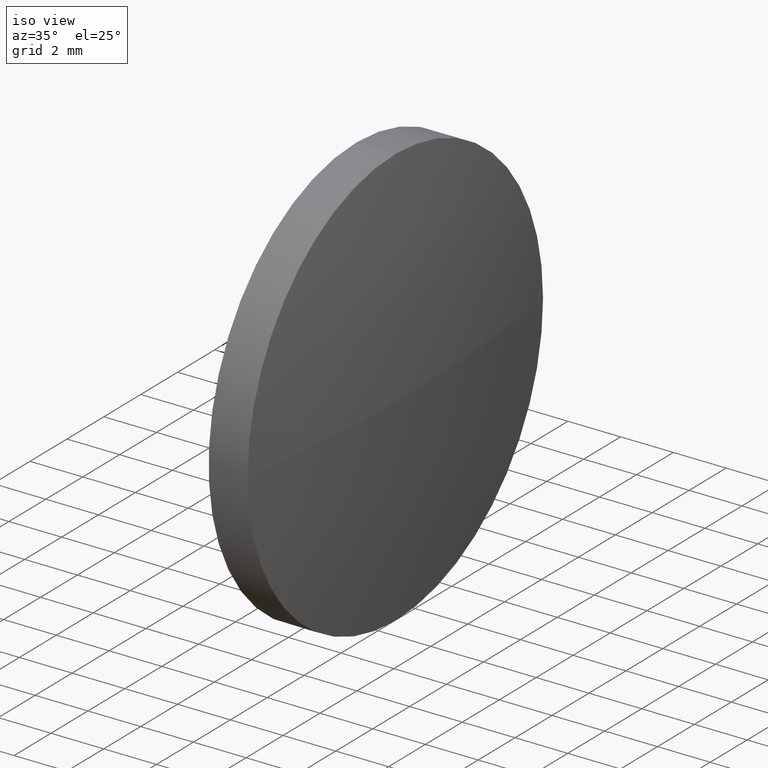
[diagram: clean part render]
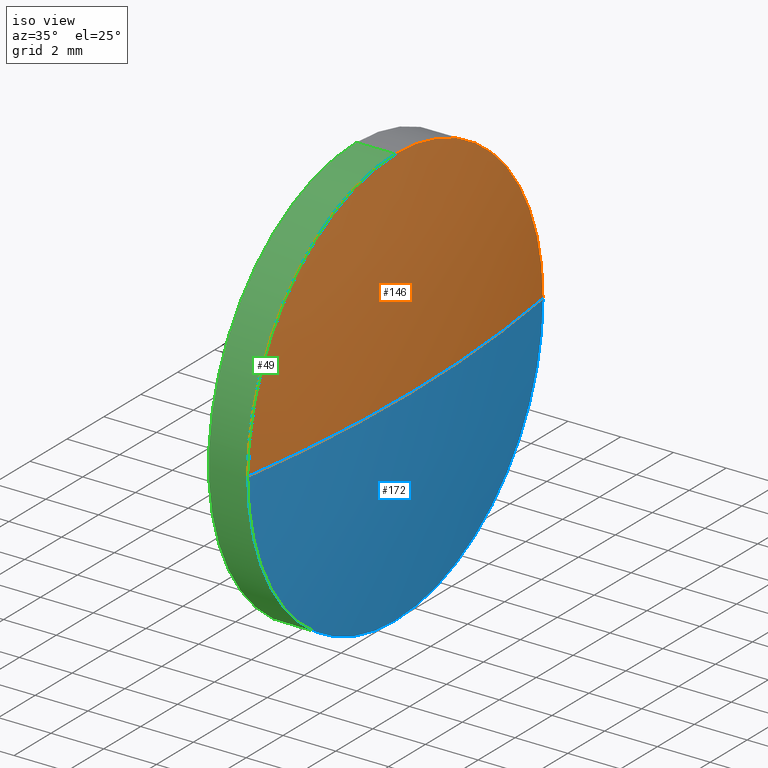
[diagram: same view with three faces highlighted in distinct colors, each labeled with its STEP entity id]
A machine part, iso view with three faces highlighted in distinct colors.
Their STEP definitions:

[orange] entity #146 — the highlighted spherical surface has radius 51.9229 mm.
#2 = VERTEX_POINT ( 'NONE', #34 ) ;
#5 = FACE_OUTER_BOUND ( 'NONE', #177, .T. ) ;
#6 = ORIENTED_EDGE ( 'NONE', *, *, #84, .F. ) ;
#17 = AXIS2_PLACEMENT_3D ( 'NONE', #73, #40, #101 ) ;
#22 = DIRECTION ( 'NONE',  ( -1.000000000000000000, -0.0000000000000000000, -0.0000000000000000000 ) ) ;
#32 = EDGE_CURVE ( 'NONE', #2, #154, #134, .T. ) ;
#34 = CARTESIAN_POINT ( 'NONE',  ( 432.4406144049648900, 100.3116985881700900, 8.000000000000007100 ) ) ;
#37 = AXIS2_PLACEMENT_3D ( 'NONE', #137, #75, #58 ) ;
#40 = DIRECTION ( 'NONE',  ( 0.0000000000000000000, 0.0000000000000000000, -1.000000000000000000 ) ) ;
#44 = AXIS2_PLACEMENT_3D ( 'NONE', #98, #156, #171 ) ;
#45 = DIRECTION ( 'NONE',  ( 0.0000000000000000000, -1.000000000000000000, -1.224646799147353200E-016 ) ) ;
#46 = ORIENTED_EDGE ( 'NONE', *, *, #95, .F. ) ;
#53 = SPHERICAL_SURFACE ( 'NONE', #37, 51.92290322580650000 ) ;
#57 = AXIS2_PLACEMENT_3D ( 'NONE', #61, #158, #45 ) ;
#58 = DIRECTION ( 'NONE',  ( 0.0000000000000000000, -1.000000000000000000, 0.0000000000000000000 ) ) ;
#61 = CARTESIAN_POINT ( 'NONE',  ( 381.1377111791583700, 100.3116985881701200, 0.0000000000000000000 ) ) ;
#73 = CARTESIAN_POINT ( 'NONE',  ( 381.1377111791583700, 100.3116985881701200, 0.0000000000000000000 ) ) ;
#75 = DIRECTION ( 'NONE',  ( 0.0000000000000000000, 0.0000000000000000000, 1.000000000000000000 ) ) ;
#84 = EDGE_CURVE ( 'NONE', #102, #117, #93, .T. ) ;
#87 = AXIS2_PLACEMENT_3D ( 'NONE', #179, #22, #162 ) ;
#88 = CIRCLE ( 'NONE', #57, 51.92290322580650000 ) ;
#93 = CIRCLE ( 'NONE', #17, 51.92290322580650800 ) ;
#95 = EDGE_CURVE ( 'NONE', #117, #2, #152, .T. ) ;
#98 = CARTESIAN_POINT ( 'NONE',  ( 432.4406144049648900, 100.3116985881700900, 0.0000000000000000000 ) ) ;
#100 = CARTESIAN_POINT ( 'NONE',  ( 433.0606144049648900, 100.3116985881701200, 0.0000000000000000000 ) ) ;
#101 = DIRECTION ( 'NONE',  ( -1.000000000000000000, 0.0000000000000000000, 0.0000000000000000000 ) ) ;
#102 = VERTEX_POINT ( 'NONE', #100 ) ;
#110 = CARTESIAN_POINT ( 'NONE',  ( 432.4406144049648900, 108.3116985881701000, 9.797174393178815800E-016 ) ) ;
#111 = CARTESIAN_POINT ( 'NONE',  ( 432.4406144049648900, 92.31169858817008800, 0.0000000000000000000 ) ) ;
#116 = EDGE_CURVE ( 'NONE', #102, #154, #88, .T. ) ;
#117 = VERTEX_POINT ( 'NONE', #111 ) ;
#134 = CIRCLE ( 'NONE', #87, 8.000000000000007100 ) ;
#136 = ORIENTED_EDGE ( 'NONE', *, *, #116, .T. ) ;
#137 = CARTESIAN_POINT ( 'NONE',  ( 381.1377111791583700, 100.3116985881701200, 0.0000000000000000000 ) ) ;
#146 = ADVANCED_FACE ( 'NONE', ( #5 ), #53, .T. ) ;
#152 = CIRCLE ( 'NONE', #44, 8.000000000000007100 ) ;
#154 = VERTEX_POINT ( 'NONE', #110 ) ;
#156 = DIRECTION ( 'NONE',  ( -1.000000000000000000, -0.0000000000000000000, -0.0000000000000000000 ) ) ;
#158 = DIRECTION ( 'NONE',  ( 0.0000000000000000000, -1.224646799147353200E-016, 1.000000000000000000 ) ) ;
#162 = DIRECTION ( 'NONE',  ( 0.0000000000000000000, 0.0000000000000000000, 1.000000000000000000 ) ) ;
#171 = DIRECTION ( 'NONE',  ( 0.0000000000000000000, 0.0000000000000000000, 1.000000000000000000 ) ) ;
#177 = EDGE_LOOP ( 'NONE', ( #6, #136, #178, #46 ) ) ;
#178 = ORIENTED_EDGE ( 'NONE', *, *, #32, .F. ) ;
#179 = CARTESIAN_POINT ( 'NONE',  ( 432.4406144049648900, 100.3116985881700900, 0.0000000000000000000 ) ) ;

[blue] entity #172 — the highlighted spherical surface has radius 51.9229 mm.
#7 = CARTESIAN_POINT ( 'NONE',  ( 432.4406144049648900, 100.3116985881700900, -8.000000000000007100 ) ) ;
#11 = SPHERICAL_SURFACE ( 'NONE', #176, 51.92290322580650000 ) ;
#17 = AXIS2_PLACEMENT_3D ( 'NONE', #73, #40, #101 ) ;
#19 = VERTEX_POINT ( 'NONE', #7 ) ;
#26 = ORIENTED_EDGE ( 'NONE', *, *, #39, .F. ) ;
#29 = ORIENTED_EDGE ( 'NONE', *, *, #166, .F. ) ;
#30 = DIRECTION ( 'NONE',  ( 0.0000000000000000000, -1.000000000000000000, 0.0000000000000000000 ) ) ;
#39 = EDGE_CURVE ( 'NONE', #19, #117, #157, .T. ) ;
#40 = DIRECTION ( 'NONE',  ( 0.0000000000000000000, 0.0000000000000000000, -1.000000000000000000 ) ) ;
#45 = DIRECTION ( 'NONE',  ( 0.0000000000000000000, -1.000000000000000000, -1.224646799147353200E-016 ) ) ;
#50 = CIRCLE ( 'NONE', #147, 8.000000000000007100 ) ;
#51 = ORIENTED_EDGE ( 'NONE', *, *, #84, .T. ) ;
#57 = AXIS2_PLACEMENT_3D ( 'NONE', #61, #158, #45 ) ;
#61 = CARTESIAN_POINT ( 'NONE',  ( 381.1377111791583700, 100.3116985881701200, 0.0000000000000000000 ) ) ;
#62 = EDGE_LOOP ( 'NONE', ( #99, #51, #26, #29 ) ) ;
#69 = DIRECTION ( 'NONE',  ( -1.000000000000000000, -0.0000000000000000000, -0.0000000000000000000 ) ) ;
#72 = DIRECTION ( 'NONE',  ( -1.000000000000000000, -0.0000000000000000000, -0.0000000000000000000 ) ) ;
#73 = CARTESIAN_POINT ( 'NONE',  ( 381.1377111791583700, 100.3116985881701200, 0.0000000000000000000 ) ) ;
#78 = AXIS2_PLACEMENT_3D ( 'NONE', #149, #69, #163 ) ;
#81 = CARTESIAN_POINT ( 'NONE',  ( 432.4406144049648900, 100.3116985881700900, 0.0000000000000000000 ) ) ;
#84 = EDGE_CURVE ( 'NONE', #102, #117, #93, .T. ) ;
#88 = CIRCLE ( 'NONE', #57, 51.92290322580650000 ) ;
#93 = CIRCLE ( 'NONE', #17, 51.92290322580650800 ) ;
#99 = ORIENTED_EDGE ( 'NONE', *, *, #116, .F. ) ;
#100 = CARTESIAN_POINT ( 'NONE',  ( 433.0606144049648900, 100.3116985881701200, 0.0000000000000000000 ) ) ;
#101 = DIRECTION ( 'NONE',  ( -1.000000000000000000, 0.0000000000000000000, 0.0000000000000000000 ) ) ;
#102 = VERTEX_POINT ( 'NONE', #100 ) ;
#110 = CARTESIAN_POINT ( 'NONE',  ( 432.4406144049648900, 108.3116985881701000, 9.797174393178815800E-016 ) ) ;
#111 = CARTESIAN_POINT ( 'NONE',  ( 432.4406144049648900, 92.31169858817008800, 0.0000000000000000000 ) ) ;
#116 = EDGE_CURVE ( 'NONE', #102, #154, #88, .T. ) ;
#117 = VERTEX_POINT ( 'NONE', #111 ) ;
#140 = DIRECTION ( 'NONE',  ( 0.0000000000000000000, 0.0000000000000000000, 1.000000000000000000 ) ) ;
#147 = AXIS2_PLACEMENT_3D ( 'NONE', #81, #72, #186 ) ;
#149 = CARTESIAN_POINT ( 'NONE',  ( 432.4406144049648900, 100.3116985881700900, 0.0000000000000000000 ) ) ;
#154 = VERTEX_POINT ( 'NONE', #110 ) ;
#157 = CIRCLE ( 'NONE', #78, 8.000000000000007100 ) ;
#158 = DIRECTION ( 'NONE',  ( 0.0000000000000000000, -1.224646799147353200E-016, 1.000000000000000000 ) ) ;
#163 = DIRECTION ( 'NONE',  ( 0.0000000000000000000, 0.0000000000000000000, 1.000000000000000000 ) ) ;
#166 = EDGE_CURVE ( 'NONE', #154, #19, #50, .T. ) ;
#170 = CARTESIAN_POINT ( 'NONE',  ( 381.1377111791583700, 100.3116985881701200, 0.0000000000000000000 ) ) ;
#172 = ADVANCED_FACE ( 'NONE', ( #183 ), #11, .T. ) ;
#176 = AXIS2_PLACEMENT_3D ( 'NONE', #170, #140, #30 ) ;
#183 = FACE_OUTER_BOUND ( 'NONE', #62, .T. ) ;
#186 = DIRECTION ( 'NONE',  ( 0.0000000000000000000, 0.0000000000000000000, 1.000000000000000000 ) ) ;

[green] entity #49 — the highlighted cylindrical surface (partial cylindrical patch) has radius 8 mm, axis along (-1, -0, -0).
#2 = VERTEX_POINT ( 'NONE', #34 ) ;
#7 = CARTESIAN_POINT ( 'NONE',  ( 432.4406144049648900, 100.3116985881700900, -8.000000000000007100 ) ) ;
#8 = LINE ( 'NONE', #59, #132 ) ;
#19 = VERTEX_POINT ( 'NONE', #7 ) ;
#23 = ORIENTED_EDGE ( 'NONE', *, *, #95, .T. ) ;
#24 = EDGE_CURVE ( 'NONE', #127, #68, #168, .T. ) ;
#31 = DIRECTION ( 'NONE',  ( -1.000000000000000000, -0.0000000000000000000, -0.0000000000000000000 ) ) ;
#33 = EDGE_LOOP ( 'NONE', ( #79, #145, #23, #123, #86 ) ) ;
#34 = CARTESIAN_POINT ( 'NONE',  ( 432.4406144049648900, 100.3116985881700900, 8.000000000000007100 ) ) ;
#35 = CARTESIAN_POINT ( 'NONE',  ( 430.9606144049649300, 100.3116985881700900, 0.0000000000000000000 ) ) ;
#36 = VECTOR ( 'NONE', #85, 1000.000000000000000 ) ;
#39 = EDGE_CURVE ( 'NONE', #19, #117, #157, .T. ) ;
#41 = CARTESIAN_POINT ( 'NONE',  ( 430.9606144049649300, 100.3116985881700900, -8.000000000000007100 ) ) ;
#42 = CARTESIAN_POINT ( 'NONE',  ( 427.2353457846026000, 100.3116985881700900, 8.000000000000007100 ) ) ;
#44 = AXIS2_PLACEMENT_3D ( 'NONE', #98, #156, #171 ) ;
#49 = ADVANCED_FACE ( 'NONE', ( #96 ), #60, .T. ) ;
#54 = DIRECTION ( 'NONE',  ( 0.0000000000000000000, 0.0000000000000000000, 1.000000000000000000 ) ) ;
#59 = CARTESIAN_POINT ( 'NONE',  ( 427.2353457846026000, 100.3116985881700900, -8.000000000000007100 ) ) ;
#60 = CYLINDRICAL_SURFACE ( 'NONE', #131, 8.000000000000007100 ) ;
#68 = VERTEX_POINT ( 'NONE', #173 ) ;
#69 = DIRECTION ( 'NONE',  ( -1.000000000000000000, -0.0000000000000000000, -0.0000000000000000000 ) ) ;
#77 = LINE ( 'NONE', #42, #36 ) ;
#78 = AXIS2_PLACEMENT_3D ( 'NONE', #149, #69, #163 ) ;
#79 = ORIENTED_EDGE ( 'NONE', *, *, #155, .F. ) ;
#85 = DIRECTION ( 'NONE',  ( -1.000000000000000000, -0.0000000000000000000, -0.0000000000000000000 ) ) ;
#86 = ORIENTED_EDGE ( 'NONE', *, *, #24, .F. ) ;
#95 = EDGE_CURVE ( 'NONE', #117, #2, #152, .T. ) ;
#96 = FACE_OUTER_BOUND ( 'NONE', #33, .T. ) ;
#98 = CARTESIAN_POINT ( 'NONE',  ( 432.4406144049648900, 100.3116985881700900, 0.0000000000000000000 ) ) ;
#104 = DIRECTION ( 'NONE',  ( -1.000000000000000000, -0.0000000000000000000, -0.0000000000000000000 ) ) ;
#109 = AXIS2_PLACEMENT_3D ( 'NONE', #35, #104, #121 ) ;
#111 = CARTESIAN_POINT ( 'NONE',  ( 432.4406144049648900, 92.31169858817008800, 0.0000000000000000000 ) ) ;
#117 = VERTEX_POINT ( 'NONE', #111 ) ;
#121 = DIRECTION ( 'NONE',  ( 0.0000000000000000000, 0.0000000000000000000, 1.000000000000000000 ) ) ;
#123 = ORIENTED_EDGE ( 'NONE', *, *, #175, .T. ) ;
#127 = VERTEX_POINT ( 'NONE', #41 ) ;
#131 = AXIS2_PLACEMENT_3D ( 'NONE', #135, #161, #54 ) ;
#132 = VECTOR ( 'NONE', #31, 1000.000000000000000 ) ;
#135 = CARTESIAN_POINT ( 'NONE',  ( 427.2353457846026000, 100.3116985881700900, 0.0000000000000000000 ) ) ;
#145 = ORIENTED_EDGE ( 'NONE', *, *, #39, .T. ) ;
#149 = CARTESIAN_POINT ( 'NONE',  ( 432.4406144049648900, 100.3116985881700900, 0.0000000000000000000 ) ) ;
#152 = CIRCLE ( 'NONE', #44, 8.000000000000007100 ) ;
#155 = EDGE_CURVE ( 'NONE', #19, #127, #8, .T. ) ;
#156 = DIRECTION ( 'NONE',  ( -1.000000000000000000, -0.0000000000000000000, -0.0000000000000000000 ) ) ;
#157 = CIRCLE ( 'NONE', #78, 8.000000000000007100 ) ;
#161 = DIRECTION ( 'NONE',  ( -1.000000000000000000, -0.0000000000000000000, -0.0000000000000000000 ) ) ;
#163 = DIRECTION ( 'NONE',  ( 0.0000000000000000000, 0.0000000000000000000, 1.000000000000000000 ) ) ;
#168 = CIRCLE ( 'NONE', #109, 8.000000000000007100 ) ;
#171 = DIRECTION ( 'NONE',  ( 0.0000000000000000000, 0.0000000000000000000, 1.000000000000000000 ) ) ;
#173 = CARTESIAN_POINT ( 'NONE',  ( 430.9606144049649300, 100.3116985881700900, 8.000000000000007100 ) ) ;
#175 = EDGE_CURVE ( 'NONE', #2, #68, #77, .T. ) ;